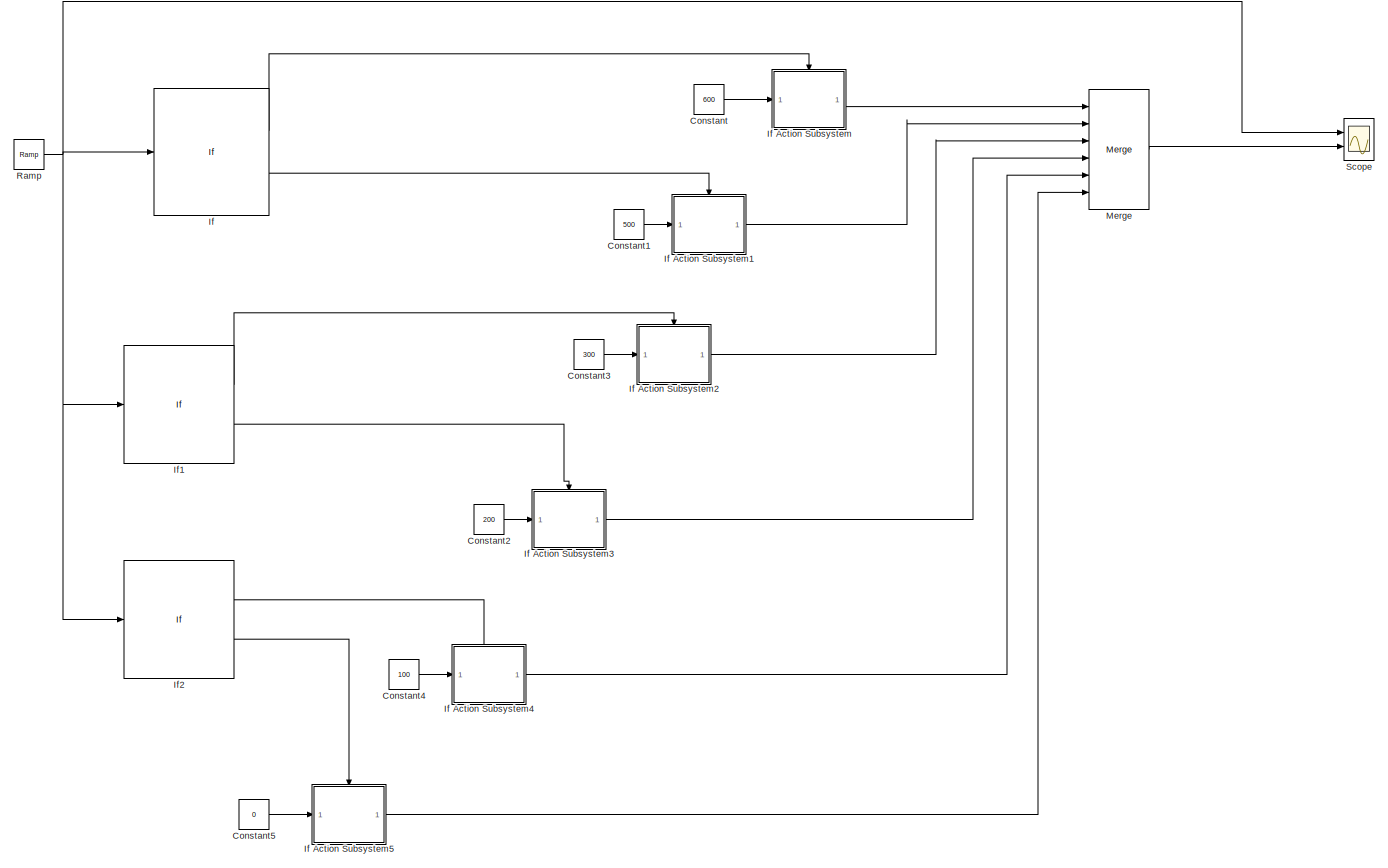
[diagram: root canvas - part 1/1, most of the canvas]
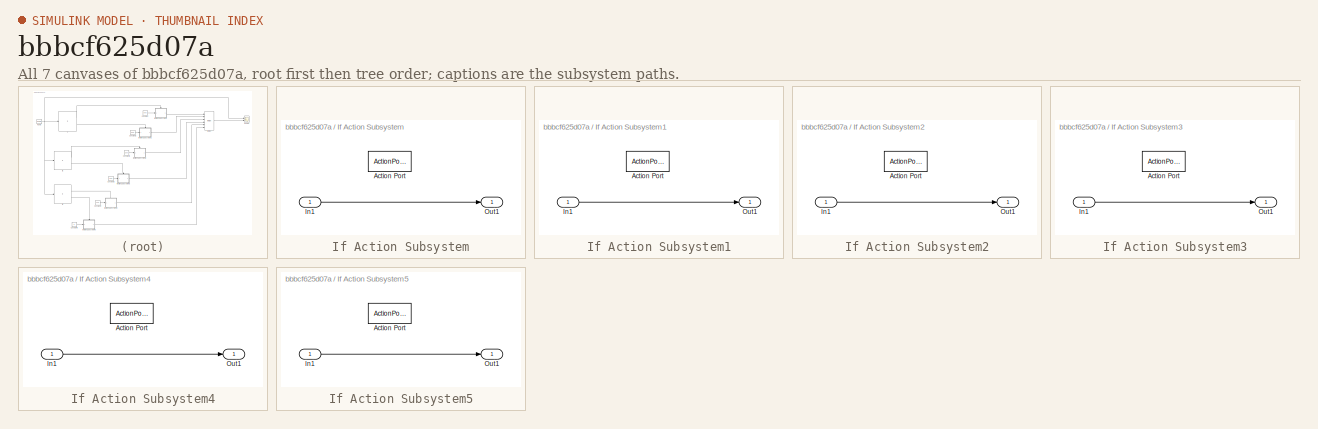
[diagram: thumbnail index - all 7 canvases of the model, root first then tree order]
MODEL slx_bbbcf625d07a
KIND model
CONFIG AbsTol = auto
CONFIG EnableMultiTasking = off
CONFIG FixedStep = auto
CONFIG MaxStep = auto
CONFIG MinStep = auto
CONFIG RelTol = 1e-3
CONFIG SampleTimeConstraint = Unconstrained
CONFIG SolverName = VariableStepAuto
CONFIG StartTime = 0.0
CONFIG StopTime = 10.0
BLOCK [Constant] Constant
  Value = 600
BLOCK [Constant] Constant1
  Value = 500
BLOCK [Constant] Constant2
  Value = 200
BLOCK [Constant] Constant3
  Value = 300
BLOCK [Constant] Constant4
  Value = 100
BLOCK [Constant] Constant5
  Value = 0
BLOCK [If] If
  ElseIfExpressions = u1 > 0.8 & u1 < 0.9
  IfExpression = u1 > 1
  Ports = [1, 2]
  ShowElse = off
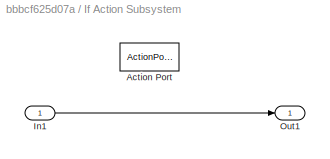
BLOCK [SubSystem] If Action Subsystem
  Ports = [1, 1, 0, 0, 0, 0, 0, 1]
  RequestExecContextInheritance = off
  TreatAsAtomicUnit = on
BLOCK [ActionPort] If Action Subsystem/Action Port
  ActionPortLabel = if(u1 > 1)
BLOCK [Inport] If Action Subsystem/In1
BLOCK [Outport] If Action Subsystem/Out1
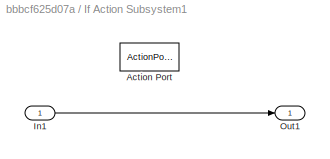
BLOCK [SubSystem] If Action Subsystem1
  Ports = [1, 1, 0, 0, 0, 0, 0, 1]
  RequestExecContextInheritance = off
  TreatAsAtomicUnit = on
BLOCK [ActionPort] If Action Subsystem1/Action Port
  ActionPortLabel = elseif(u1 > 0.8 & u1 < 0.9)
BLOCK [Inport] If Action Subsystem1/In1
BLOCK [Outport] If Action Subsystem1/Out1
BLOCK [SubSystem] If Action Subsystem2
  Ports = [1, 1, 0, 0, 0, 0, 0, 1]
  RequestExecContextInheritance = off
  TreatAsAtomicUnit = on
BLOCK [ActionPort] If Action Subsystem2/Action Port
  ActionPortLabel = if(u1 > 0.5 & u1 < 0.7)
BLOCK [Inport] If Action Subsystem2/In1
BLOCK [Outport] If Action Subsystem2/Out1
BLOCK [SubSystem] If Action Subsystem3
  Ports = [1, 1, 0, 0, 0, 0, 0, 1]
  RequestExecContextInheritance = off
  TreatAsAtomicUnit = on
BLOCK [ActionPort] If Action Subsystem3/Action Port
  ActionPortLabel = elseif(u1 > 0.3 & u1 < 0.4)
BLOCK [Inport] If Action Subsystem3/In1
BLOCK [Outport] If Action Subsystem3/Out1
BLOCK [SubSystem] If Action Subsystem4
  Ports = [1, 1, 0, 0, 0, 0, 0, 1]
  RequestExecContextInheritance = off
  TreatAsAtomicUnit = on
BLOCK [ActionPort] If Action Subsystem4/Action Port
  ActionPortLabel = if(u1 > 0 & u1 < 0.15)
BLOCK [Inport] If Action Subsystem4/In1
BLOCK [Outport] If Action Subsystem4/Out1
BLOCK [SubSystem] If Action Subsystem5
  Ports = [1, 1, 0, 0, 0, 0, 0, 1]
  RequestExecContextInheritance = off
  TreatAsAtomicUnit = on
BLOCK [ActionPort] If Action Subsystem5/Action Port
  ActionPortLabel = else
BLOCK [Inport] If Action Subsystem5/In1
BLOCK [Outport] If Action Subsystem5/Out1
BLOCK [If] If1
  ElseIfExpressions = u1 > 0.3 & u1 < 0.4
  IfExpression = u1 > 0.5 & u1 < 0.7
  Ports = [1, 2]
  ShowElse = off
BLOCK [If] If2
  IfExpression = u1 > 0 & u1 < 0.15
  Ports = [1, 2]
BLOCK [Merge] Merge
  Inputs = 6
  Ports = [6, 1]
BLOCK [Reference] Ramp  REF=simulink/Sources/Ramp
  Ports = [0, 1]
  SourceBlock = simulink/Sources/Ramp
  SourceProductBaseCode = SL
  SourceType = Ramp
BLOCK [Scope] Scope
  Floating = off
  NumInputPorts = 2
  Ports = [2]
  ScopeSpecificationString = Simulink.scopes.TimeScopeBlockCfg('CurrentConfiguration', extmgr.ConfigurationSet(extmgr.Configuration('Core','General UI',true),extmgr.Configuration('Core','Source UI',true),extmgr.Configuration('Sources','WiredSimulink',true),extmgr.Configuration('Visuals','Time Domain',true,'SerializedDisplays',{struct('MinYLimReal','-1.75','MaxYLimReal','10.75','YLabelReal','','MinYLimMag','0.00000','MaxYLimMa...<+2008ch>
LINE Constant1:1 -> If Action Subsystem1:1
LINE Constant2:1 -> If Action Subsystem3:1
LINE Constant3:1 -> If Action Subsystem2:1
LINE Constant4:1 -> If Action Subsystem4:1
LINE Constant5:1 -> If Action Subsystem5:1
LINE Constant:1 -> If Action Subsystem:1
LINE If Action Subsystem/In1:1 -> If Action Subsystem/Out1:1
LINE If Action Subsystem1/In1:1 -> If Action Subsystem1/Out1:1
LINE If Action Subsystem1:1 -> Merge:2
LINE If Action Subsystem2/In1:1 -> If Action Subsystem2/Out1:1
LINE If Action Subsystem2:1 -> Merge:3
LINE If Action Subsystem3/In1:1 -> If Action Subsystem3/Out1:1
LINE If Action Subsystem3:1 -> Merge:4
LINE If Action Subsystem4/In1:1 -> If Action Subsystem4/Out1:1
LINE If Action Subsystem4:1 -> Merge:5
LINE If Action Subsystem5/In1:1 -> If Action Subsystem5/Out1:1
LINE If Action Subsystem5:1 -> Merge:6
LINE If Action Subsystem:1 -> Merge:1
LINE If1:1 -> If Action Subsystem2:ifaction
LINE If1:2 -> If Action Subsystem3:ifaction
LINE If2:1 -> If Action Subsystem4:ifaction
LINE If2:2 -> If Action Subsystem5:ifaction
LINE If:1 -> If Action Subsystem:ifaction
LINE If:2 -> If Action Subsystem1:ifaction
LINE Merge:1 -> Scope:2
NET Ramp:1 -> If1:1, If2:1, If:1, Scope:1
note: NET lines group one-source signal fan-out (src -> all destinations, sorted); 1:1 wires keep LINE
